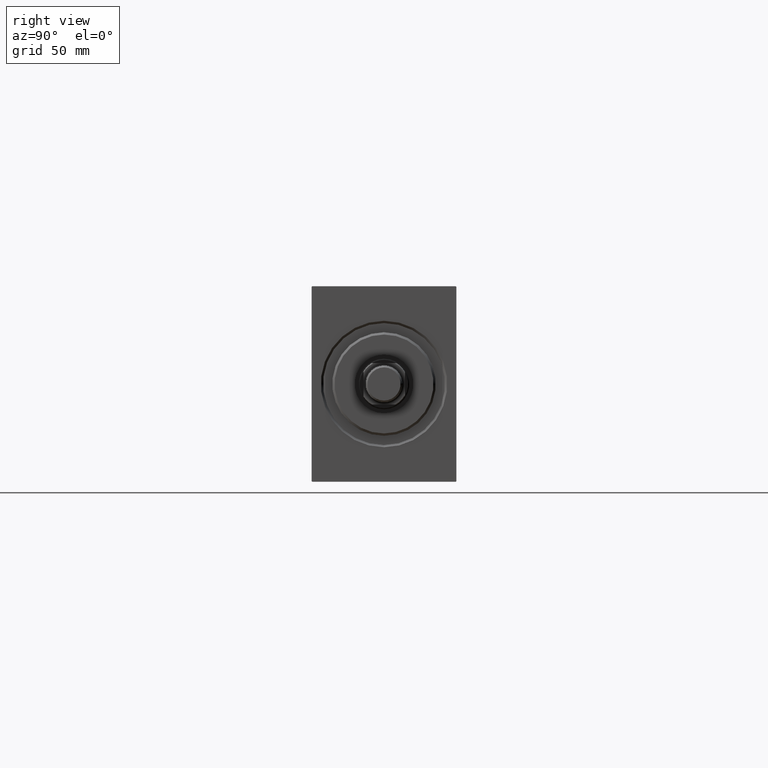
[diagram: clean part render]
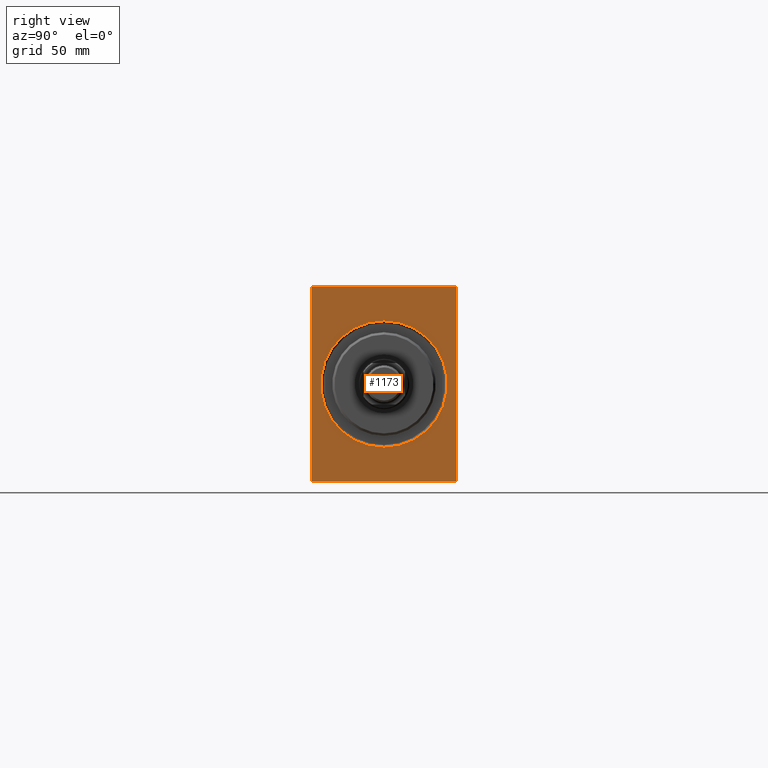
[diagram: same view with one face highlighted and labeled with its STEP entity id]
A machine part, right view. The second image highlights one B-rep face of the part: STEP entity #1173.
In plain terms, the highlighted planar face has unit normal (-1, 0, 0).
Its self-contained STEP definition (entity closure, byte-faithful):
#608 = VECTOR ( 'NONE', #21229, 1000.000000000000000 ) ;
#839 = ORIENTED_EDGE ( 'NONE', *, *, #36577, .T. ) ;
#1173 = ADVANCED_FACE ( 'NONE', ( #8941, #25753 ), #39216, .F. ) ;
#1718 = EDGE_CURVE ( 'NONE', #35371, #27892, #30266, .T. ) ;
#2558 = VERTEX_POINT ( 'NONE', #4888 ) ;
#2800 = CARTESIAN_POINT ( 'NONE',  ( 0.000000000000000000, 31.20000000000001350, -42.50000000000000711 ) ) ;
#4133 = VECTOR ( 'NONE', #23377, 1000.000000000000000 ) ;
#4546 = CARTESIAN_POINT ( 'NONE',  ( 0.000000000000000000, -31.49999999999999289, 42.19999999999993889 ) ) ;
#4839 = VECTOR ( 'NONE', #34223, 1000.000000000000000 ) ;
#4888 = CARTESIAN_POINT ( 'NONE',  ( 0.000000000000000000, -31.19999999999997797, 42.49999999999998579 ) ) ;
#5657 = ORIENTED_EDGE ( 'NONE', *, *, #9471, .T. ) ;
#5716 = VERTEX_POINT ( 'NONE', #19558 ) ;
#5822 = VERTEX_POINT ( 'NONE', #18377 ) ;
#6271 = ORIENTED_EDGE ( 'NONE', *, *, #33353, .T. ) ;
#6766 = CARTESIAN_POINT ( 'NONE',  ( 0.000000000000000000, -31.19999999999999929, -42.50000000000000711 ) ) ;
#7263 = CARTESIAN_POINT ( 'NONE',  ( 0.000000000000000000, 31.50000000000001421, -42.50000000000000711 ) ) ;
#7552 = ORIENTED_EDGE ( 'NONE', *, *, #39984, .F. ) ;
#7748 = CARTESIAN_POINT ( 'NONE',  ( 0.000000000000000000, -31.49999999999999289, -42.50000000000000711 ) ) ;
#8453 = ORIENTED_EDGE ( 'NONE', *, *, #27123, .T. ) ;
#8941 = FACE_BOUND ( 'NONE', #38672, .T. ) ;
#9089 = ORIENTED_EDGE ( 'NONE', *, *, #21181, .F. ) ;
#9471 = EDGE_CURVE ( 'NONE', #5716, #12739, #23450, .T. ) ;
#9505 = CARTESIAN_POINT ( 'NONE',  ( 0.000000000000000000, 3.367778697655217758E-15, -27.49999999999996803 ) ) ;
#9597 = AXIS2_PLACEMENT_3D ( 'NONE', #37072, #9663, #43251 ) ;
#9663 = DIRECTION ( 'NONE',  ( 1.000000000000000000, 0.000000000000000000, 0.000000000000000000 ) ) ;
#10392 = ORIENTED_EDGE ( 'NONE', *, *, #22319, .F. ) ;
#10509 = VERTEX_POINT ( 'NONE', #6766 ) ;
#11811 = CARTESIAN_POINT ( 'NONE',  ( 0.000000000000000000, 0.000000000000000000, 0.000000000000000000 ) ) ;
#11843 = AXIS2_PLACEMENT_3D ( 'NONE', #32807, #16008, #29501 ) ;
#12133 = CARTESIAN_POINT ( 'NONE',  ( 0.000000000000000000, -31.49999999999999289, 42.49999999999998579 ) ) ;
#12739 = VERTEX_POINT ( 'NONE', #9505 ) ;
#16008 = DIRECTION ( 'NONE',  ( 1.000000000000000000, 0.000000000000000000, 0.000000000000000000 ) ) ;
#16305 = CARTESIAN_POINT ( 'NONE',  ( 0.000000000000000000, -31.49999999999999289, 42.19999999999993889 ) ) ;
#18253 = VERTEX_POINT ( 'NONE', #39749 ) ;
#18377 = CARTESIAN_POINT ( 'NONE',  ( 0.000000000000000000, -31.49999999999999289, -42.20000000000000995 ) ) ;
#18524 = AXIS2_PLACEMENT_3D ( 'NONE', #11811, #18671, #28847 ) ;
#18671 = DIRECTION ( 'NONE',  ( 1.000000000000000000, 0.000000000000000000, 0.000000000000000000 ) ) ;
#19401 = LINE ( 'NONE', #37060, #4133 ) ;
#19558 = CARTESIAN_POINT ( 'NONE',  ( 0.000000000000000000, 0.000000000000000000, 27.49999999999996803 ) ) ;
#20396 = VECTOR ( 'NONE', #39091, 1000.000000000000000 ) ;
#20414 = VECTOR ( 'NONE', #32713, 1000.000000000000000 ) ;
#20519 = CARTESIAN_POINT ( 'NONE',  ( 0.000000000000000000, -31.19999999999999929, -42.50000000000000711 ) ) ;
#21181 = EDGE_CURVE ( 'NONE', #10509, #27892, #27863, .T. ) ;
#21229 = DIRECTION ( 'NONE',  ( 0.000000000000000000, 1.000000000000000000, 0.000000000000000000 ) ) ;
#21471 = EDGE_CURVE ( 'NONE', #35371, #26491, #37542, .T. ) ;
#21973 = EDGE_LOOP ( 'NONE', ( #7552, #839, #36050, #30245, #9089, #35695, #10392, #8453 ) ) ;
#22319 = EDGE_CURVE ( 'NONE', #28033, #5822, #28941, .T. ) ;
#23377 = DIRECTION ( 'NONE',  ( 0.000000000000000000, -1.000000000000000000, -2.202823461557850341E-16 ) ) ;
#23450 = CIRCLE ( 'NONE', #18524, 27.49999999999996803 ) ;
#24984 = LINE ( 'NONE', #38662, #42817 ) ;
#25753 = FACE_OUTER_BOUND ( 'NONE', #21973, .T. ) ;
#26491 = VERTEX_POINT ( 'NONE', #26585 ) ;
#26585 = CARTESIAN_POINT ( 'NONE',  ( 0.000000000000000000, 31.50000000000000000, 42.19999999999998863 ) ) ;
#27123 = EDGE_CURVE ( 'NONE', #28033, #2558, #33107, .T. ) ;
#27863 = LINE ( 'NONE', #7748, #608 ) ;
#27892 = VERTEX_POINT ( 'NONE', #2800 ) ;
#28033 = VERTEX_POINT ( 'NONE', #4546 ) ;
#28599 = CARTESIAN_POINT ( 'NONE',  ( 0.000000000000000000, 31.50000000000001421, -42.20000000000001705 ) ) ;
#28685 = CIRCLE ( 'NONE', #9597, 27.49999999999996803 ) ;
#28847 = DIRECTION ( 'NONE',  ( 0.000000000000000000, 0.000000000000000000, -1.000000000000000000 ) ) ;
#28941 = LINE ( 'NONE', #12133, #20396 ) ;
#29501 = DIRECTION ( 'NONE',  ( 0.000000000000000000, 0.000000000000000000, -1.000000000000000000 ) ) ;
#29619 = CARTESIAN_POINT ( 'NONE',  ( 0.000000000000000000, 31.50000000000001421, -42.20000000000001705 ) ) ;
#29791 = DIRECTION ( 'NONE',  ( -0.000000000000000000, 0.7071067811865066055, 0.7071067811865884289 ) ) ;
#30245 = ORIENTED_EDGE ( 'NONE', *, *, #1718, .T. ) ;
#30266 = LINE ( 'NONE', #29619, #20414 ) ;
#30389 = VECTOR ( 'NONE', #40598, 1000.000000000000000 ) ;
#30412 = EDGE_CURVE ( 'NONE', #10509, #5822, #30898, .T. ) ;
#30898 = LINE ( 'NONE', #20519, #30389 ) ;
#32713 = DIRECTION ( 'NONE',  ( 0.000000000000000000, -0.7071067811865556774, -0.7071067811865393571 ) ) ;
#32807 = CARTESIAN_POINT ( 'NONE',  ( 0.000000000000000000, 0.000000000000000000, 0.000000000000000000 ) ) ;
#33107 = LINE ( 'NONE', #16305, #35926 ) ;
#33353 = EDGE_CURVE ( 'NONE', #12739, #5716, #28685, .T. ) ;
#34223 = DIRECTION ( 'NONE',  ( 0.000000000000000000, -1.632680918566406300E-16, 1.000000000000000000 ) ) ;
#35371 = VERTEX_POINT ( 'NONE', #28599 ) ;
#35695 = ORIENTED_EDGE ( 'NONE', *, *, #30412, .T. ) ;
#35926 = VECTOR ( 'NONE', #29791, 1000.000000000000114 ) ;
#36050 = ORIENTED_EDGE ( 'NONE', *, *, #21471, .F. ) ;
#36577 = EDGE_CURVE ( 'NONE', #18253, #26491, #24984, .T. ) ;
#37060 = CARTESIAN_POINT ( 'NONE',  ( 0.000000000000000000, 31.50000000000000000, 42.50000000000000000 ) ) ;
#37072 = CARTESIAN_POINT ( 'NONE',  ( 0.000000000000000000, 0.000000000000000000, 0.000000000000000000 ) ) ;
#37542 = LINE ( 'NONE', #7263, #4839 ) ;
#38445 = DIRECTION ( 'NONE',  ( -0.000000000000000000, 0.7071067811865884289, -0.7071067811865066055 ) ) ;
#38662 = CARTESIAN_POINT ( 'NONE',  ( 0.000000000000000000, 31.19999999999994955, 42.50000000000000000 ) ) ;
#38672 = EDGE_LOOP ( 'NONE', ( #5657, #6271 ) ) ;
#39091 = DIRECTION ( 'NONE',  ( 0.000000000000000000, 0.000000000000000000, -1.000000000000000000 ) ) ;
#39216 = PLANE ( 'NONE',  #11843 ) ;
#39749 = CARTESIAN_POINT ( 'NONE',  ( 0.000000000000000000, 31.19999999999994955, 42.50000000000000000 ) ) ;
#39984 = EDGE_CURVE ( 'NONE', #18253, #2558, #19401, .T. ) ;
#40598 = DIRECTION ( 'NONE',  ( -0.000000000000000000, -0.7071067811865393571, 0.7071067811865556774 ) ) ;
#42817 = VECTOR ( 'NONE', #38445, 1000.000000000000114 ) ;
#43251 = DIRECTION ( 'NONE',  ( 0.000000000000000000, 0.000000000000000000, -1.000000000000000000 ) ) ;